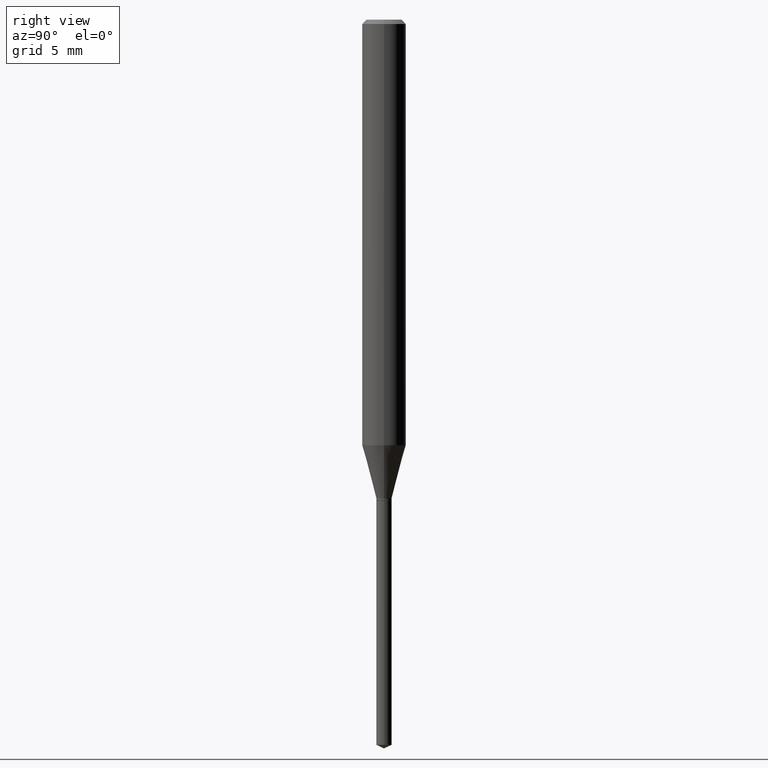
[diagram: clean part render]
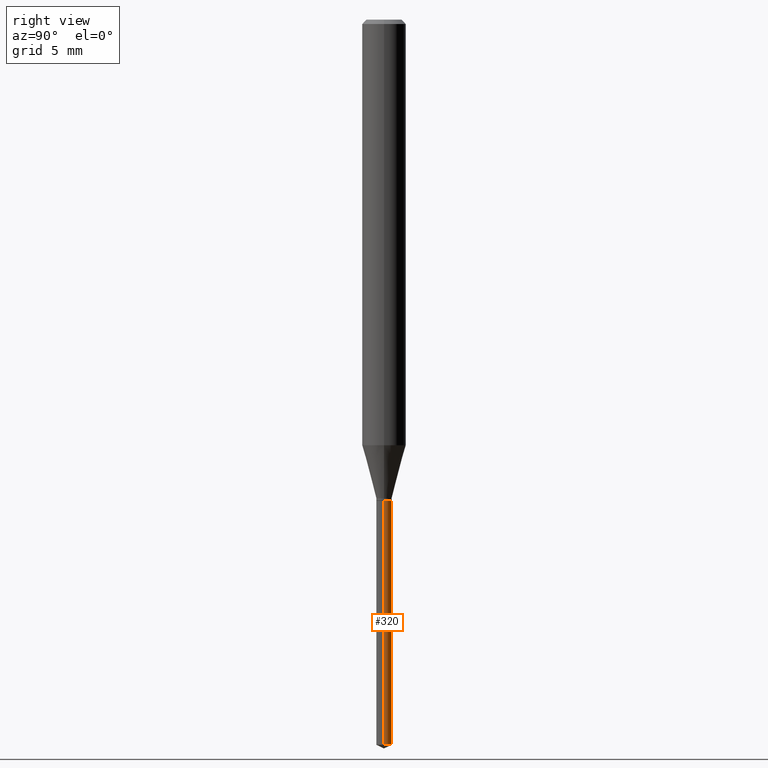
[diagram: same view with one face highlighted and labeled with its STEP entity id]
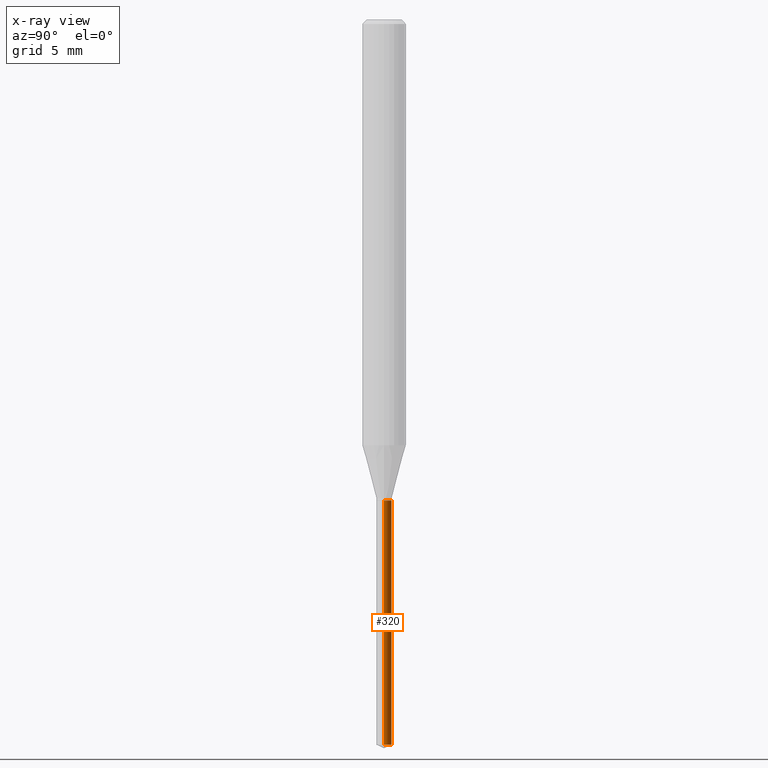
[diagram: x-ray of the same camera — body ghosted, the highlighted face saturated]
A machine part, right view. The second image highlights one B-rep face of the part: STEP entity #320.
The next image is the same camera in x-ray: the body ghosted, the highlighted face saturated — about 0% of this face is hidden behind the body in this view.
In plain terms, the highlighted cylindrical surface (edge-blend (fillet) strip) has radius 0.5245 mm, axis along (-0, 0, 1).
Its self-contained STEP definition (entity closure, byte-faithful):
#12 = CARTESIAN_POINT ( 'NONE',  ( 0.02065000000000000863, -6.983558837158501362E-15, -1.958870746859099343 ) ) ;
#20 = DIRECTION ( 'NONE',  ( -2.445468806185136597E-29, 3.491481338843145583E-15, 1.000000000000000000 ) ) ;
#38 = DIRECTION ( 'NONE',  ( -2.445468806185136597E-29, 3.491481338843145583E-15, 1.000000000000000000 ) ) ;
#40 = DIRECTION ( 'NONE',  ( -2.445468806185136877E-29, 3.491481338843145188E-15, 1.000000000000000000 ) ) ;
#56 = CYLINDRICAL_SURFACE ( 'NONE', #253, 0.02065000000000000169 ) ;
#73 = CARTESIAN_POINT ( 'NONE',  ( 3.177153072995729878E-29, -4.536132555425015522E-15, -1.299200000000000133 ) ) ;
#75 = DIRECTION ( 'NONE',  ( 1.000000000000000000, -6.982962677686264344E-15, 0.000000000000000000 ) ) ;
#78 = LINE ( 'NONE', #272, #356 ) ;
#86 = EDGE_CURVE ( 'NONE', #337, #141, #464, .T. ) ;
#105 = VERTEX_POINT ( 'NONE', #328 ) ;
#119 = VECTOR ( 'NONE', #40, 39.37007874015748143 ) ;
#122 = DIRECTION ( 'NONE',  ( -2.445468806185136877E-29, 3.491481338843145188E-15, 1.000000000000000000 ) ) ;
#141 = VERTEX_POINT ( 'NONE', #477 ) ;
#152 = CARTESIAN_POINT ( 'NONE',  ( -0.02065000000000000169, -4.389405480490555216E-15, -1.299200000000000133 ) ) ;
#196 = VERTEX_POINT ( 'NONE', #380 ) ;
#239 = CIRCLE ( 'NONE', #414, 0.02065000000000000169 ) ;
#241 = LINE ( 'NONE', #152, #119 ) ;
#253 = AXIS2_PLACEMENT_3D ( 'NONE', #73, #277, #75 ) ;
#272 = CARTESIAN_POINT ( 'NONE',  ( 0.02065000000000000169, -4.680330734719237239E-15, -1.299200000000000133 ) ) ;
#277 = DIRECTION ( 'NONE',  ( -2.445468806185136597E-29, 3.491481338843145583E-15, 1.000000000000000000 ) ) ;
#293 = AXIS2_PLACEMENT_3D ( 'NONE', #343, #20, #473 ) ;
#305 = EDGE_CURVE ( 'NONE', #141, #105, #241, .T. ) ;
#314 = EDGE_CURVE ( 'NONE', #337, #196, #78, .T. ) ;
#315 = CARTESIAN_POINT ( 'NONE',  ( 3.177153072995729878E-29, -4.536132555425015522E-15, -1.299200000000000133 ) ) ;
#320 = ADVANCED_FACE ( 'NONE', ( #459 ), #56, .T. ) ;
#324 = ORIENTED_EDGE ( 'NONE', *, *, #86, .T. ) ;
#328 = CARTESIAN_POINT ( 'NONE',  ( -0.02065000000000000169, -5.541019531710188461E-15, -1.299200000000000133 ) ) ;
#337 = VERTEX_POINT ( 'NONE', #12 ) ;
#343 = CARTESIAN_POINT ( 'NONE',  ( 4.790357306792508112E-29, -6.839360657864280434E-15, -1.958870746859099343 ) ) ;
#356 = VECTOR ( 'NONE', #122, 39.37007874015748143 ) ;
#380 = CARTESIAN_POINT ( 'NONE',  ( 0.02065000000000000169, -4.680330734719237239E-15, -1.299200000000000133 ) ) ;
#414 = AXIS2_PLACEMENT_3D ( 'NONE', #315, #38, #460 ) ;
#432 = EDGE_LOOP ( 'NONE', ( #324, #475, #452, #436 ) ) ;
#436 = ORIENTED_EDGE ( 'NONE', *, *, #314, .F. ) ;
#452 = ORIENTED_EDGE ( 'NONE', *, *, #455, .F. ) ;
#455 = EDGE_CURVE ( 'NONE', #196, #105, #239, .T. ) ;
#459 = FACE_OUTER_BOUND ( 'NONE', #432, .T. ) ;
#460 = DIRECTION ( 'NONE',  ( 1.000000000000000000, -6.982962677686264344E-15, 0.000000000000000000 ) ) ;
#464 = CIRCLE ( 'NONE', #293, 0.02065000000000000169 ) ;
#473 = DIRECTION ( 'NONE',  ( 1.000000000000000000, -6.982962677686264344E-15, 0.000000000000000000 ) ) ;
#475 = ORIENTED_EDGE ( 'NONE', *, *, #305, .T. ) ;
#477 = CARTESIAN_POINT ( 'NONE',  ( -0.02065000000000000863, -6.692633582929820128E-15, -1.958870746859099343 ) ) ;